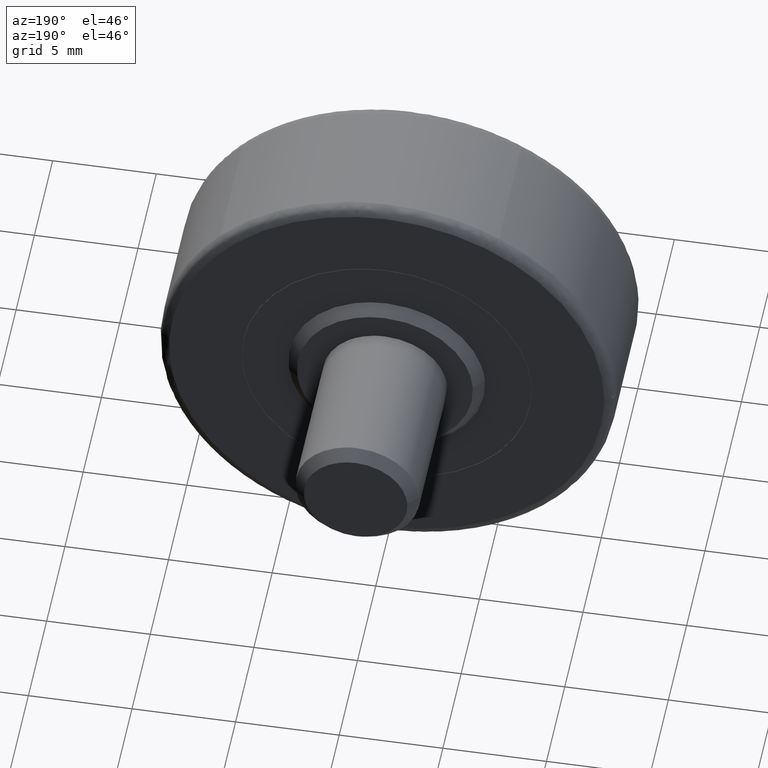
[diagram: clean part render]
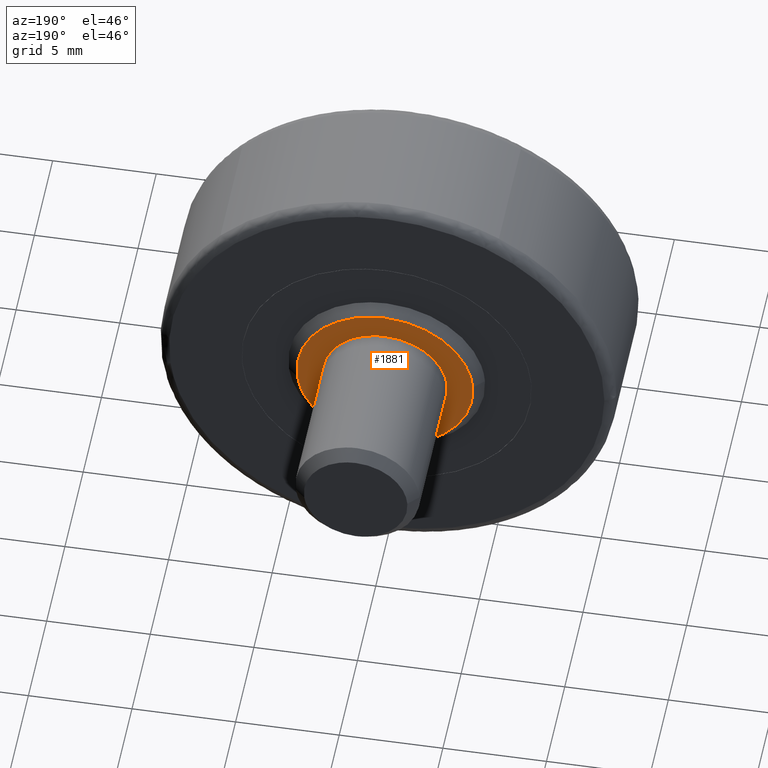
[diagram: same view with one face highlighted and labeled with its STEP entity id]
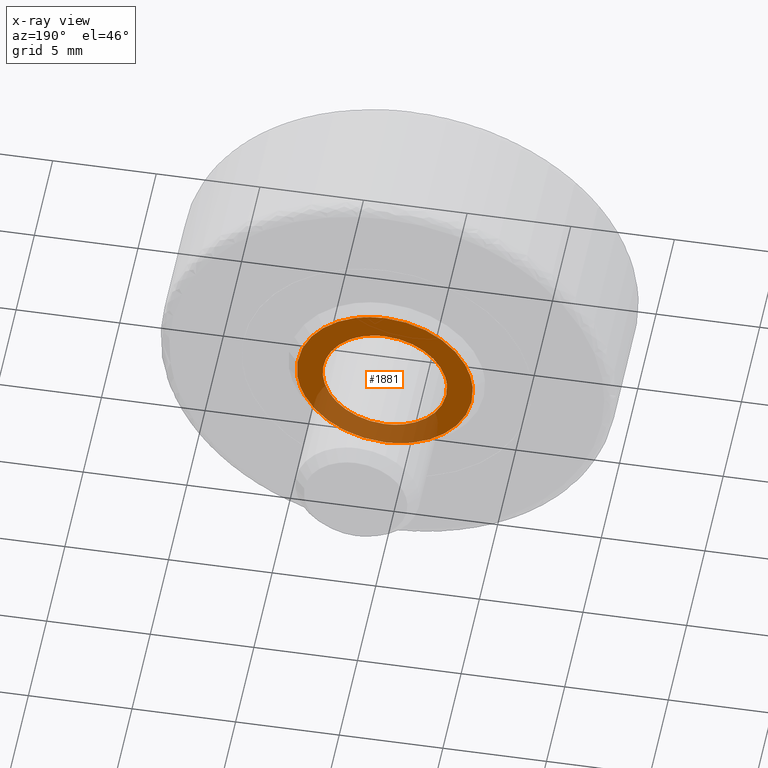
[diagram: x-ray of the same camera — body ghosted, the highlighted face saturated]
A machine part, auxiliary view. The second image highlights one B-rep face of the part: STEP entity #1881.
The next image is the same camera in x-ray: the body ghosted, the highlighted face saturated — about 30% of this face is hidden behind the body in this view.
In plain terms, the highlighted face is a freeform B-spline surface patch.
Its self-contained STEP definition (entity closure, byte-faithful):
#85=CARTESIAN_POINT('',(4.220290487045932,7.499999999994490,-0.501645497334968));
#86=VERTEX_POINT('',#85);
#92=CARTESIAN_POINT('',(0.0,7.500000000000000,4.250000000000000));
#93=VERTEX_POINT('',#92);
#94=CARTESIAN_POINT('',(4.220290487045932,7.499999999994490,-0.501645497334968));
#95=CARTESIAN_POINT('',(4.249999999999999,7.500000000000000,-0.251702508564168));
#96=CARTESIAN_POINT('',(4.250000000000000,7.500000000000000,-2.492082E-016));
#97=CARTESIAN_POINT('',(4.249999999999999,7.500000000000000,4.249999999999999));
#98=CARTESIAN_POINT('',(0.0,7.500000000000000,4.250000000000000));
#106=(BOUNDED_CURVE()B_SPLINE_CURVE(2,(#94,#95,#96,#97,#98),.UNSPECIFIED.,.F.,.U.)B_SPLINE_CURVE_WITH_KNOTS((3,2,3),(0.229562473512193,0.250000000000000,0.500000000000000),.UNSPECIFIED.)CURVE()GEOMETRIC_REPRESENTATION_ITEM()RATIONAL_B_SPLINE_CURVE((0.956026754181121,0.976055948329604,1.0,0.707106781186548,1.0))REPRESENTATION_ITEM(''));
#107=EDGE_CURVE('',#86,#93,#106,.T.);
#109=CARTESIAN_POINT('',(-4.242072893298040,7.499999999990484,0.259456293095542));
#110=VERTEX_POINT('',#109);
#111=CARTESIAN_POINT('',(0.0,7.500000000000000,4.250000000000000));
#112=CARTESIAN_POINT('',(-3.998000784213560,7.500000000000000,4.250000000000001));
#113=CARTESIAN_POINT('',(-4.242072893298041,7.499999999990484,0.259456293095542));
#121=(BOUNDED_CURVE()B_SPLINE_CURVE(2,(#111,#112,#113),.UNSPECIFIED.,.F.,.U.)B_SPLINE_CURVE_WITH_KNOTS((3,3),(0.500000000000000,0.739332962236125),.UNSPECIFIED.)CURVE()GEOMETRIC_REPRESENTATION_ITEM()RATIONAL_B_SPLINE_CURVE((1.0,0.719603993290011,0.976072041660679))REPRESENTATION_ITEM(''));
#122=EDGE_CURVE('',#93,#110,#121,.T.);
#196=CARTESIAN_POINT('',(0.0,7.500000000000000,-4.250000000000000));
#197=VERTEX_POINT('',#196);
#198=CARTESIAN_POINT('',(-4.242072893298040,7.499999999990484,0.259456293095542));
#199=CARTESIAN_POINT('',(-4.250000000000000,7.500000000000000,0.129849244091023));
#200=CARTESIAN_POINT('',(-4.250000000000000,7.500000000000000,-2.492082E-016));
#201=CARTESIAN_POINT('',(-4.249999999999999,7.500000000000000,-4.249999999999999));
#202=CARTESIAN_POINT('',(0.0,7.500000000000000,-4.250000000000000));
#210=(BOUNDED_CURVE()B_SPLINE_CURVE(2,(#198,#199,#200,#201,#202),.UNSPECIFIED.,.F.,.U.)B_SPLINE_CURVE_WITH_KNOTS((3,2,3),(0.739332962236126,0.750000000000000,1.0),.UNSPECIFIED.)CURVE()GEOMETRIC_REPRESENTATION_ITEM()RATIONAL_B_SPLINE_CURVE((0.976072041660680,0.987502787896537,1.0,0.707106781186548,1.0))REPRESENTATION_ITEM(''));
#211=EDGE_CURVE('',#110,#197,#210,.T.);
#213=CARTESIAN_POINT('',(0.0,7.500000000000000,-4.250000000000000));
#214=CARTESIAN_POINT('',(3.774741735215680,7.499999999999998,-4.249999999999999));
#215=CARTESIAN_POINT('',(4.220290487045932,7.499999999994491,-0.501645497334968));
#223=(BOUNDED_CURVE()B_SPLINE_CURVE(2,(#213,#214,#215),.UNSPECIFIED.,.F.,.U.)B_SPLINE_CURVE_WITH_KNOTS((3,3),(0.0,0.229562473512193),.UNSPECIFIED.)CURVE()GEOMETRIC_REPRESENTATION_ITEM()RATIONAL_B_SPLINE_CURVE((1.0,0.731050832856944,0.956026754181121))REPRESENTATION_ITEM(''));
#224=EDGE_CURVE('',#197,#86,#223,.T.);
#280=CARTESIAN_POINT('',(-2.994404395263733,7.500000000000000,0.183145618635100));
#281=VERTEX_POINT('',#280);
#287=CARTESIAN_POINT('',(0.0,7.500000000000000,3.0));
#288=VERTEX_POINT('',#287);
#289=CARTESIAN_POINT('',(0.0,7.500000000000000,3.0));
#290=CARTESIAN_POINT('',(-2.822118200659431,7.500000000000000,3.000000000000000));
#291=CARTESIAN_POINT('',(-2.994404395263734,7.500000000000000,0.183145618635100));
#299=(BOUNDED_CURVE()B_SPLINE_CURVE(2,(#289,#290,#291),.UNSPECIFIED.,.F.,.U.)B_SPLINE_CURVE_WITH_KNOTS((3,3),(0.500000000000000,0.739332962238450),.UNSPECIFIED.)CURVE()GEOMETRIC_REPRESENTATION_ITEM()RATIONAL_B_SPLINE_CURVE((1.0,0.719603993287288,0.976072041665661))REPRESENTATION_ITEM(''));
#300=EDGE_CURVE('',#288,#281,#299,.T.);
#302=CARTESIAN_POINT('',(1.054853931478792,7.500000000000000,2.808430733210939));
#303=VERTEX_POINT('',#302);
#304=CARTESIAN_POINT('',(1.054853931478792,7.500000000000000,2.808430733210940));
#305=CARTESIAN_POINT('',(0.544822167363358,7.499999999999999,3.000000000000000));
#306=CARTESIAN_POINT('',(0.0,7.500000000000000,3.0));
#314=(BOUNDED_CURVE()B_SPLINE_CURVE(2,(#304,#305,#306),.UNSPECIFIED.,.F.,.U.)B_SPLINE_CURVE_WITH_KNOTS((3,3),(0.440284169964845,0.500000000000000),.UNSPECIFIED.)CURVE()GEOMETRIC_REPRESENTATION_ITEM()RATIONAL_B_SPLINE_CURVE((0.893499553492692,0.930038553307545,1.0))REPRESENTATION_ITEM(''));
#315=EDGE_CURVE('',#303,#288,#314,.T.);
#365=CARTESIAN_POINT('',(0.0,7.500000000000000,-3.0));
#366=VERTEX_POINT('',#365);
#367=CARTESIAN_POINT('',(0.0,7.500000000000000,-3.0));
#368=CARTESIAN_POINT('',(3.0,7.500000000000000,-3.0));
#369=CARTESIAN_POINT('',(3.0,7.500000000000000,-2.492082E-016));
#370=CARTESIAN_POINT('',(3.000000000000000,7.500000000000001,2.077828773957489));
#371=CARTESIAN_POINT('',(1.054853931478792,7.500000000000000,2.808430733210940));
#379=(BOUNDED_CURVE()B_SPLINE_CURVE(2,(#367,#368,#369,#370,#371),.UNSPECIFIED.,.F.,.U.)B_SPLINE_CURVE_WITH_KNOTS((3,2,3),(0.0,0.250000000000000,0.440284169964845),.UNSPECIFIED.)CURVE()GEOMETRIC_REPRESENTATION_ITEM()RATIONAL_B_SPLINE_CURVE((1.0,0.707106781186548,1.0,0.777068227879002,0.893499553492693))REPRESENTATION_ITEM(''));
#380=EDGE_CURVE('',#366,#303,#379,.T.);
#382=CARTESIAN_POINT('',(-2.994404395263734,7.500000000000000,0.183145618635100));
#383=CARTESIAN_POINT('',(-3.000000000000000,7.500000000000000,0.091658289926381));
#384=CARTESIAN_POINT('',(-3.0,7.500000000000000,-2.492082E-016));
#385=CARTESIAN_POINT('',(-3.0,7.500000000000000,-3.0));
#386=CARTESIAN_POINT('',(0.0,7.500000000000000,-3.0));
#394=(BOUNDED_CURVE()B_SPLINE_CURVE(2,(#382,#383,#384,#385,#386),.UNSPECIFIED.,.F.,.U.)B_SPLINE_CURVE_WITH_KNOTS((3,2,3),(0.739332962238450,0.750000000000000,1.0),.UNSPECIFIED.)CURVE()GEOMETRIC_REPRESENTATION_ITEM()RATIONAL_B_SPLINE_CURVE((0.976072041665661,0.987502787899260,1.0,0.707106781186548,1.0))REPRESENTATION_ITEM(''));
#395=EDGE_CURVE('',#281,#366,#394,.T.);
#1864=CARTESIAN_POINT('',(-4.674471941262539,7.500000000000000,4.674574983525350));
#1865=CARTESIAN_POINT('',(-4.674471941262539,7.500000000000000,-4.674575211513117));
#1866=CARTESIAN_POINT('',(4.674497703880126,7.500000000000000,4.674574983525350));
#1867=CARTESIAN_POINT('',(4.674497703880126,7.500000000000000,-4.674575211513117));
#1868=B_SPLINE_SURFACE_WITH_KNOTS('',1,1,((#1864,#1866),(#1865,#1867)),.UNSPECIFIED.,.F.,.F.,.U.,(2,2),(2,2),(0.0,9.349150195038467),(0.0,9.348969645142665),.UNSPECIFIED.);
#1869=ORIENTED_EDGE('',*,*,#211,.F.);
#1870=ORIENTED_EDGE('',*,*,#122,.F.);
#1871=ORIENTED_EDGE('',*,*,#107,.F.);
#1872=ORIENTED_EDGE('',*,*,#224,.F.);
#1873=EDGE_LOOP('',(#1869,#1870,#1871,#1872));
#1874=FACE_OUTER_BOUND('',#1873,.T.);
#1875=ORIENTED_EDGE('',*,*,#300,.T.);
#1876=ORIENTED_EDGE('',*,*,#395,.T.);
#1877=ORIENTED_EDGE('',*,*,#380,.T.);
#1878=ORIENTED_EDGE('',*,*,#315,.T.);
#1879=EDGE_LOOP('',(#1875,#1876,#1877,#1878));
#1880=FACE_BOUND('',#1879,.T.);
#1881=ADVANCED_FACE('',(#1874,#1880),#1868,.F.);